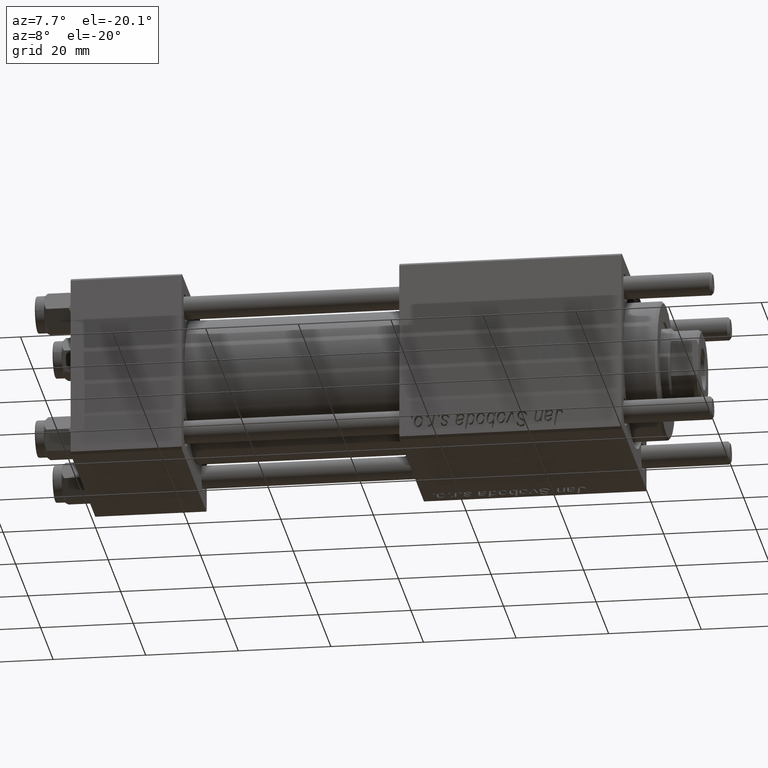
[diagram: clean part render]
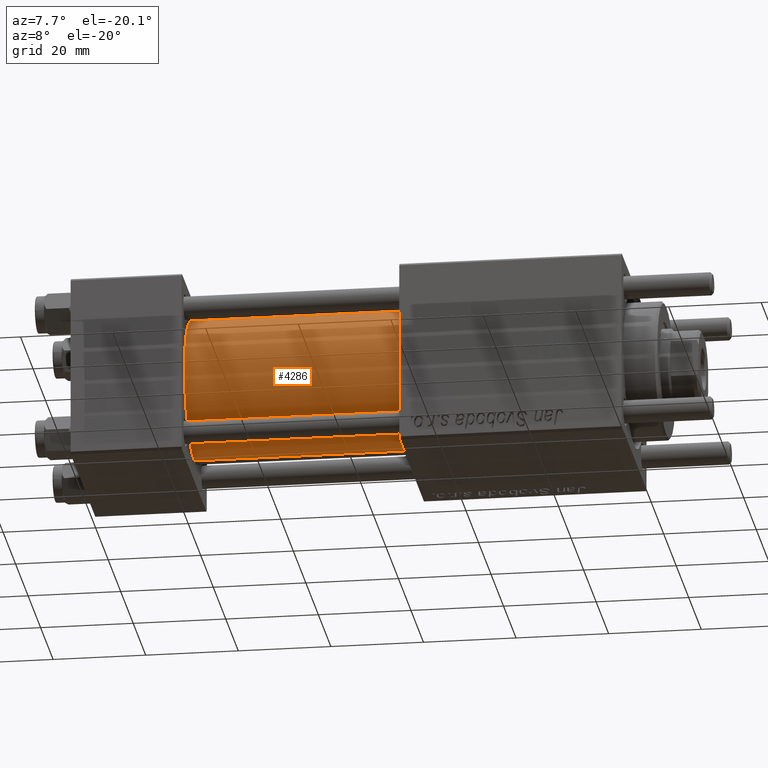
[diagram: same view with one face highlighted and labeled with its STEP entity id]
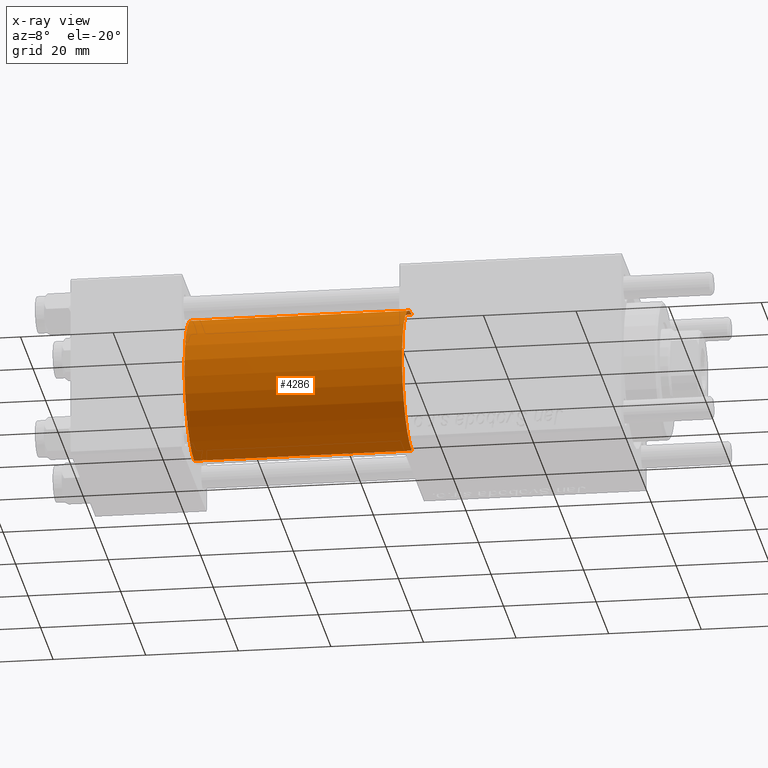
[diagram: x-ray of the same camera — body ghosted, the highlighted face saturated]
A machine part, auxiliary view. The second image highlights one B-rep face of the part: STEP entity #4286.
The next image is the same camera in x-ray: the body ghosted, the highlighted face saturated — about 0% of this face is hidden behind the body in this view.
In plain terms, the highlighted cylindrical surface (partial cylindrical patch) has radius 15.5 mm, axis along (-1, -0, -0).
Its self-contained STEP definition (entity closure, byte-faithful):
#782 = DIRECTION ( 'NONE',  ( 0.000000000000000000, 0.000000000000000000, 1.000000000000000000 ) ) ;
#1573 = EDGE_CURVE ( 'NONE', #25873, #27449, #6179, .T. ) ;
#3269 = CIRCLE ( 'NONE', #35302, 15.50000000000000000 ) ;
#3320 = EDGE_CURVE ( 'NONE', #14855, #25873, #42970, .T. ) ;
#4286 = ADVANCED_FACE ( 'NONE', ( #27426 ), #14538, .T. ) ;
#6179 = LINE ( 'NONE', #19645, #38351 ) ;
#9602 = CARTESIAN_POINT ( 'NONE',  ( 24.00000000000000000, -2.602085213965210642E-15, 15.50000000000000000 ) ) ;
#10058 = AXIS2_PLACEMENT_3D ( 'NONE', #31999, #30880, #782 ) ;
#11379 = CARTESIAN_POINT ( 'NONE',  ( 71.00000000000001421, -2.602085213965210642E-15, 0.000000000000000000 ) ) ;
#14538 = CYLINDRICAL_SURFACE ( 'NONE', #10058, 15.50000000000000000 ) ;
#14855 = VERTEX_POINT ( 'NONE', #44258 ) ;
#15222 = EDGE_CURVE ( 'NONE', #14855, #47820, #27537, .T. ) ;
#15380 = DIRECTION ( 'NONE',  ( 1.000000000000000000, 0.000000000000000000, 0.000000000000000000 ) ) ;
#19645 = CARTESIAN_POINT ( 'NONE',  ( 71.00000000000001421, -7.038826752868131828E-16, -15.50000000000000000 ) ) ;
#20763 = CARTESIAN_POINT ( 'NONE',  ( 24.00000000000000000, -2.602085213965210642E-15, 0.000000000000000000 ) ) ;
#22680 = CARTESIAN_POINT ( 'NONE',  ( 71.00000000000001421, -2.602085213965210642E-15, 15.50000000000000000 ) ) ;
#25873 = VERTEX_POINT ( 'NONE', #28406 ) ;
#26218 = ORIENTED_EDGE ( 'NONE', *, *, #1573, .F. ) ;
#27426 = FACE_OUTER_BOUND ( 'NONE', #48434, .T. ) ;
#27449 = VERTEX_POINT ( 'NONE', #56382 ) ;
#27537 = LINE ( 'NONE', #22680, #45026 ) ;
#28406 = CARTESIAN_POINT ( 'NONE',  ( 71.00000000000001421, -7.038826752868131828E-16, -15.50000000000000000 ) ) ;
#30880 = DIRECTION ( 'NONE',  ( -1.000000000000000000, -0.000000000000000000, -0.000000000000000000 ) ) ;
#31999 = CARTESIAN_POINT ( 'NONE',  ( 71.00000000000001421, -2.602085213965210642E-15, 0.000000000000000000 ) ) ;
#32246 = DIRECTION ( 'NONE',  ( -1.000000000000000000, -0.000000000000000000, -0.000000000000000000 ) ) ;
#32388 = DIRECTION ( 'NONE',  ( -1.000000000000000000, -0.000000000000000000, -0.000000000000000000 ) ) ;
#34761 = DIRECTION ( 'NONE',  ( 1.000000000000000000, 0.000000000000000000, 0.000000000000000000 ) ) ;
#35302 = AXIS2_PLACEMENT_3D ( 'NONE', #20763, #34761, #43385 ) ;
#37806 = EDGE_CURVE ( 'NONE', #47820, #27449, #3269, .T. ) ;
#38351 = VECTOR ( 'NONE', #32246, 1000.000000000000000 ) ;
#39986 = ORIENTED_EDGE ( 'NONE', *, *, #3320, .F. ) ;
#40197 = AXIS2_PLACEMENT_3D ( 'NONE', #11379, #15380, #46328 ) ;
#42970 = CIRCLE ( 'NONE', #40197, 15.50000000000000000 ) ;
#43385 = DIRECTION ( 'NONE',  ( 0.000000000000000000, 0.000000000000000000, 1.000000000000000000 ) ) ;
#44258 = CARTESIAN_POINT ( 'NONE',  ( 71.00000000000001421, -2.602085213965210642E-15, 15.50000000000000000 ) ) ;
#45026 = VECTOR ( 'NONE', #32388, 1000.000000000000000 ) ;
#45795 = ORIENTED_EDGE ( 'NONE', *, *, #15222, .T. ) ;
#46328 = DIRECTION ( 'NONE',  ( 0.000000000000000000, 0.000000000000000000, -1.000000000000000000 ) ) ;
#47820 = VERTEX_POINT ( 'NONE', #9602 ) ;
#48434 = EDGE_LOOP ( 'NONE', ( #26218, #39986, #45795, #48952 ) ) ;
#48952 = ORIENTED_EDGE ( 'NONE', *, *, #37806, .T. ) ;
#56382 = CARTESIAN_POINT ( 'NONE',  ( 24.00000000000000000, -7.038826752868131828E-16, -15.50000000000000000 ) ) ;